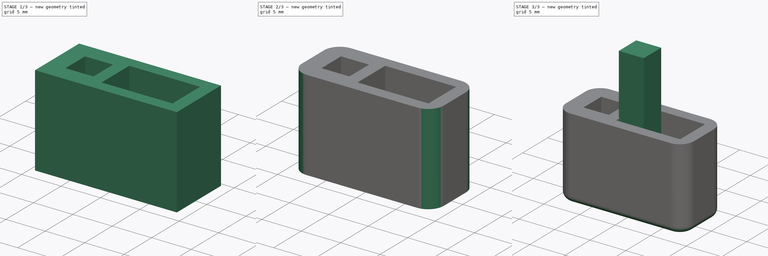
[diagram: build sequence overview — one tinted view per stage of 3, left to right]
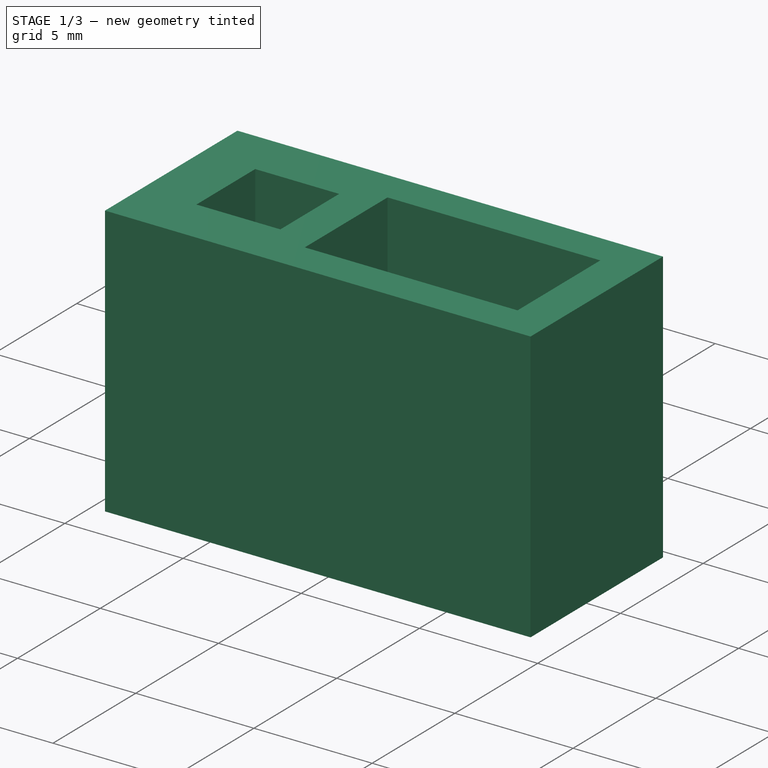
[diagram: stage 1 of 3 — iso view after this stage's code; geometry added in this stage tinted green]
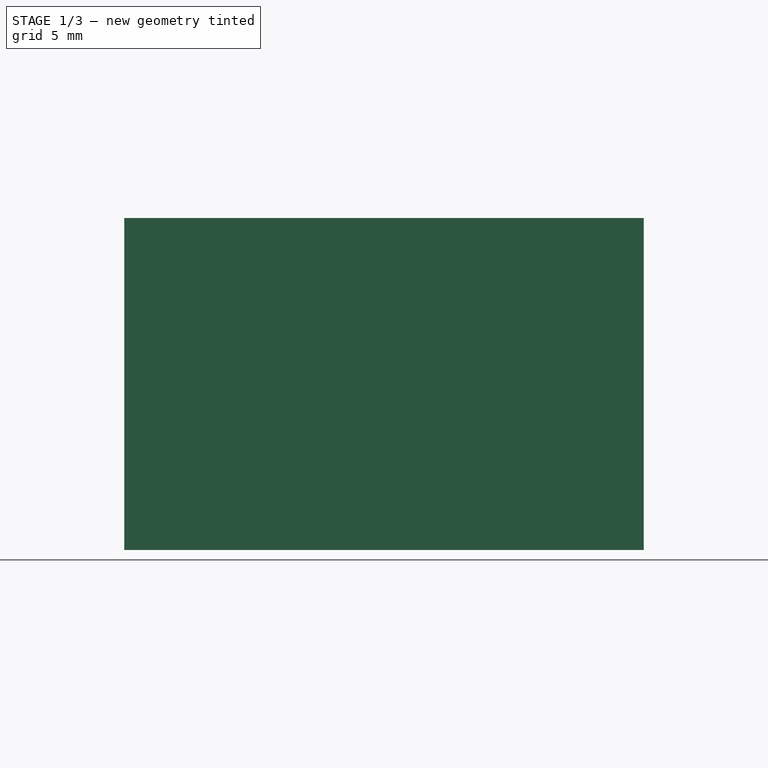
[diagram: stage 1 of 3 — front view after this stage's code; geometry added in this stage tinted green]
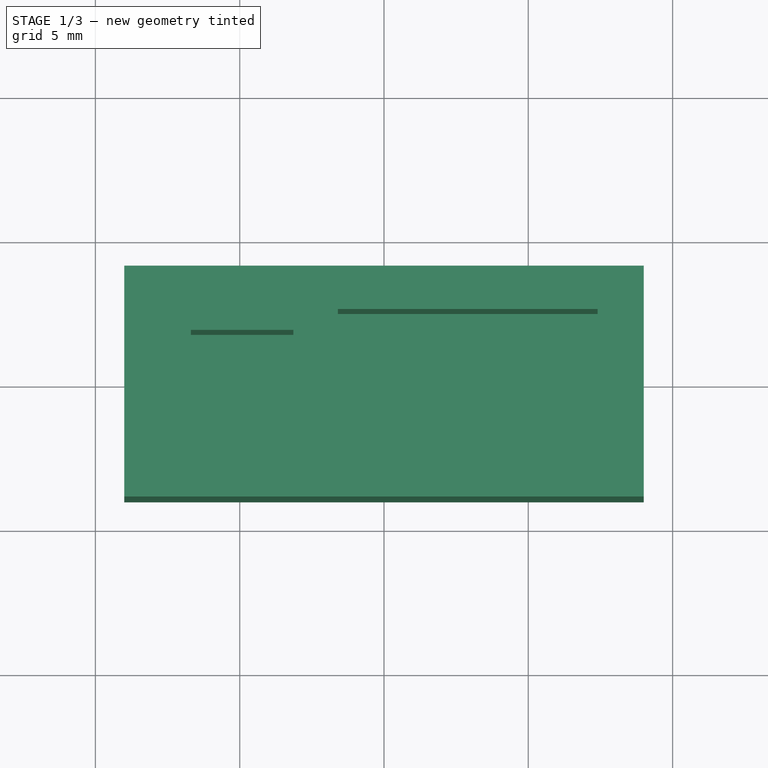
[diagram: stage 1 of 3 — top view after this stage's code; geometry added in this stage tinted green]
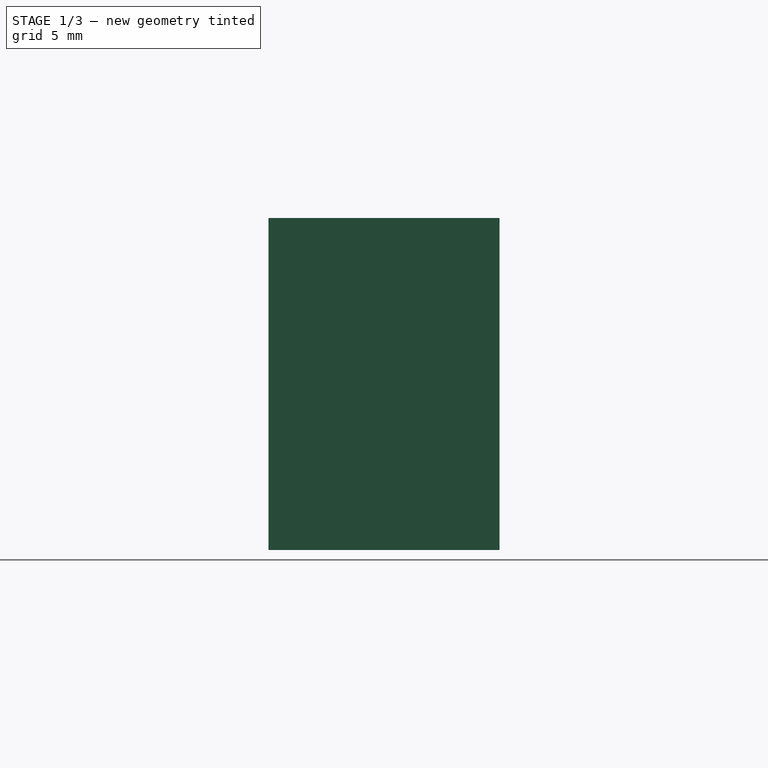
[diagram: stage 1 of 3 — right view after this stage's code; geometry added in this stage tinted green]
FCSTD DOCUMENT  (FreeCAD 1.1R42149 (Git))
Label: penshurst-stove-hood-button
License: All rights reserved
LicenseURL: https://en.wikipedia.org/wiki/All_rights_reserved
objects: Sketcher::SketchObject×3, App::Point×2, PartDesign::Pad×2, PartDesign::Fillet×2, PartDesign::Body×2, PartDesign::Pocket×1
note: 23 computed .brp shape members not serialized (recipe doc carries the construction recipe); baked Part::Feature solids carry a one-line shape summary decoded from their .brp

FEATURE [App::Point] Origin001
  Role = Origin
FEATURE [Sketcher::SketchObject] Sketch
  ArcFitTolerance = 1e-06
  AttachmentSupport = -> [Origin]
  ExternalTypes = [0]
  FullyConstrained = true
  MakeInternals = false
  MapMode = 5
  sketch-geometry (4):
    g0: LineSegment StartX=-9 StartY=4 StartZ=0 EndX=-9 EndY=-4 EndZ=0
    g1: LineSegment StartX=-9 StartY=-4 StartZ=0 EndX=9 EndY=-4 EndZ=0
    g2: LineSegment StartX=9 StartY=-4 StartZ=0 EndX=9 EndY=4 EndZ=0
    g3: LineSegment StartX=9 StartY=4 StartZ=0 EndX=-9 EndY=4 EndZ=0
  constraints (11):
    c: Coincident(g0,g1)
    c: Coincident(g1,g2)
    c: Coincident(g2,g3)
    c: Coincident(g3,g0)
    c: Vertical(g0)
    c: Vertical(g2)
    c: Horizontal(g1)
    c: Horizontal(g3)
    c: DistanceX(g3,g3) = 18
    c: DistanceY(g0,g0) = 8  'Width'
    c: Symmetric(g0,g1,g-1)
FEATURE [PartDesign::Pad] Pad
  Direction = (0,0,1)
  Length = 11.5
  Length2 = 10
  Profile = -> Sketch
  ReferenceAxis = -> Sketch [N_Axis]
  Refine = true
  Suppressed = false
  Type = 0
FEATURE [Sketcher::SketchObject] Sketch001
  ArcFitTolerance = 1e-06
  AttachmentSupport = -> [Pad]
  ExternalGeometry = -> [Pad]
  ExternalTypes = [0,0]
  FullyConstrained = true
  MakeInternals = false
  MapMode = 5
  Placement = pos=(0,0,11.5) rot=(0,0,1;0rad)
  sketch-geometry (8):
    g0: LineSegment StartX=7.4 StartY=2.5 StartZ=0 EndX=-1.6 EndY=2.5 EndZ=0
    g1: LineSegment StartX=-1.6 StartY=2.5 StartZ=0 EndX=-1.6 EndY=-2.5 EndZ=0
    g2: LineSegment StartX=-1.6 StartY=-2.5 StartZ=0 EndX=7.4 EndY=-2.5 EndZ=0
    g3: LineSegment StartX=7.4 StartY=-2.5 StartZ=0 EndX=7.4 EndY=2.5 EndZ=0
    g4: LineSegment StartX=-6.69 StartY=1.775 StartZ=0 EndX=-6.69 EndY=-1.775 EndZ=0
    g5: LineSegment StartX=-6.69 StartY=-1.775 StartZ=0 EndX=-3.14 EndY=-1.775 EndZ=0
    g6: LineSegment StartX=-3.14 StartY=-1.775 StartZ=0 EndX=-3.14 EndY=1.775 EndZ=0
    g7: LineSegment StartX=-3.14 StartY=1.775 StartZ=0 EndX=-6.69 EndY=1.775 EndZ=0
  constraints (22):
    c: Coincident(g0,g1)
    c: Coincident(g1,g2)
    c: Coincident(g2,g3)
    c: Coincident(g3,g0)
    c: Horizontal(g0)
    c: Horizontal(g2)
    c: Vertical(g1)
    c: Coincident(g4,g5)
    c: Coincident(g5,g6)
    c: Coincident(g6,g7)
    c: Coincident(g7,g4)
    c: Vertical(g4)
    c: Horizontal(g5)
    c: Horizontal(g7)
    c: Equal(g5,g4)
    c: DistanceY(g3,g3) = 5
    c: Symmetric(g0,g2,g-1)
    c: Symmetric(g6,g5,g-1)
    c: Distance(g4,g4) = 3.55
    c: Distance(g5,g-2) = 3.14
    c: DistanceX(g6,g0) = 1.54
    c: DistanceX(g0,g0) = 9
FEATURE [PartDesign::Pocket] Pocket
  BaseFeature = -> Pad
  Direction = (0,0,-1)
  Length = 9.9
  Length2 = 5
  Profile = -> Sketch001
  ReferenceAxis = -> Sketch001 [N_Axis]
  Refine = true
  Suppressed = false
  Type = 0
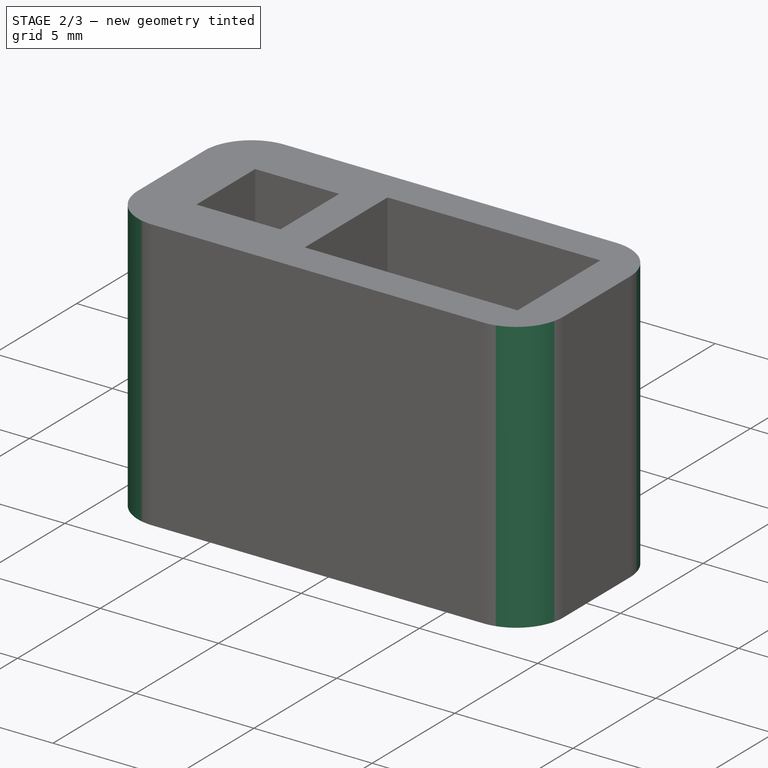
[diagram: stage 2 of 3 — iso view after this stage's code; geometry added in this stage tinted green]
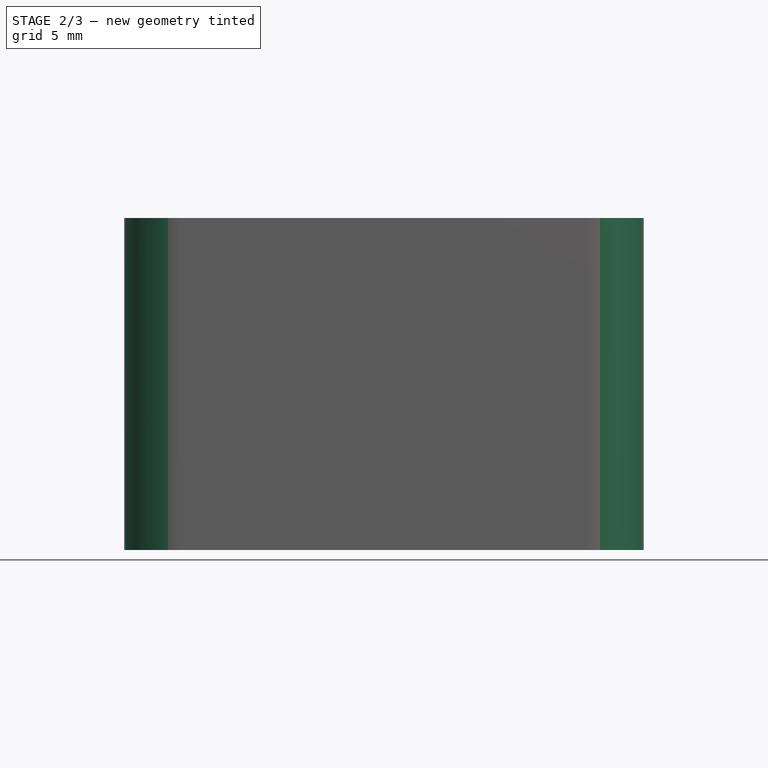
[diagram: stage 2 of 3 — front view after this stage's code; geometry added in this stage tinted green]
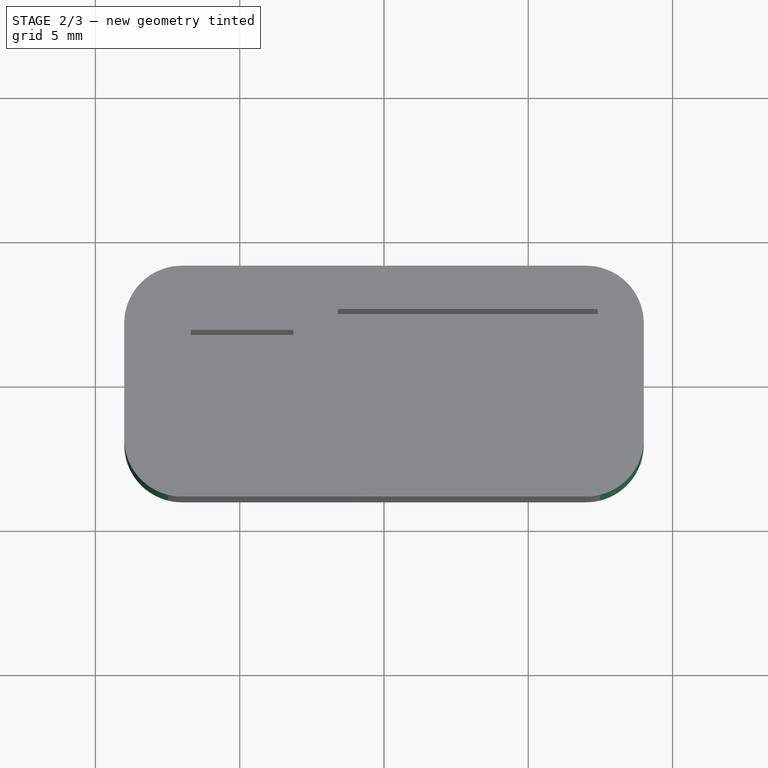
[diagram: stage 2 of 3 — top view after this stage's code; geometry added in this stage tinted green]
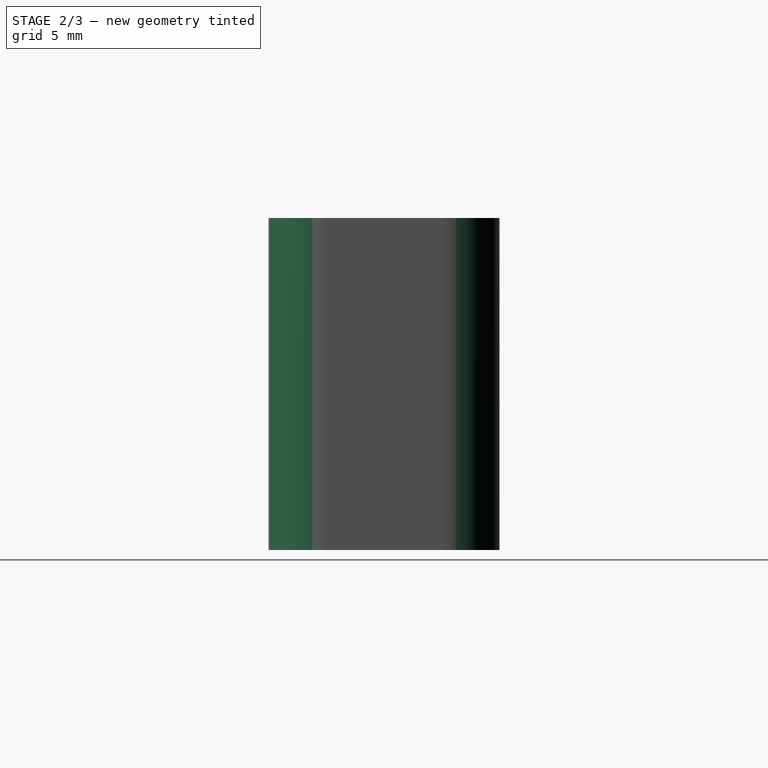
[diagram: stage 2 of 3 — right view after this stage's code; geometry added in this stage tinted green]
FEATURE [PartDesign::Fillet] Fillet
  Base = -> Pocket [Edge8,Edge5,Edge2,Edge1]
  BaseFeature = -> Pocket
  Radius = 2
  Refine = true
  SupportTransform = false
  Suppressed = false
  UseAllEdges = false
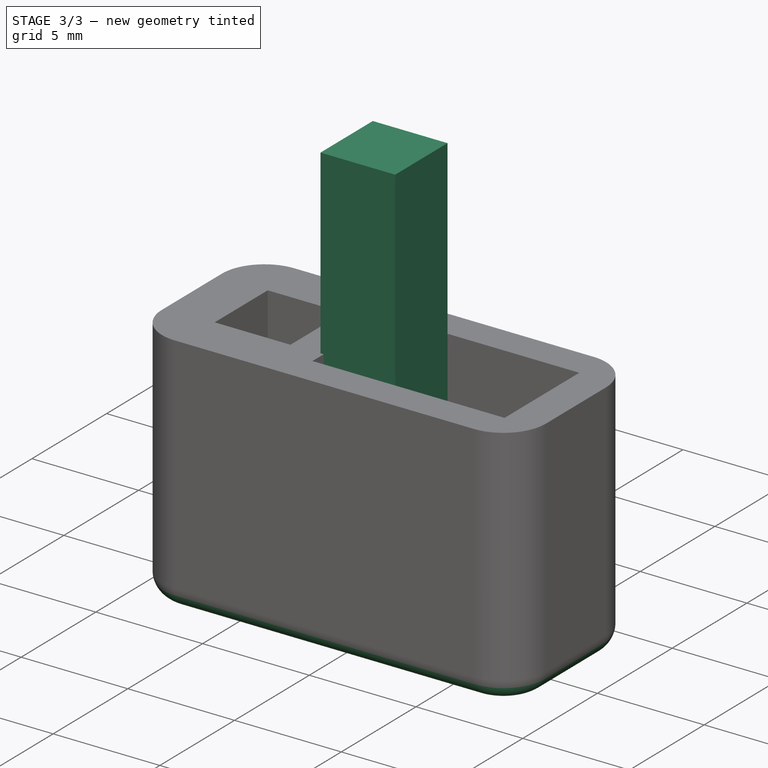
[diagram: stage 3 of 3 — iso view after this stage's code; geometry added in this stage tinted green]
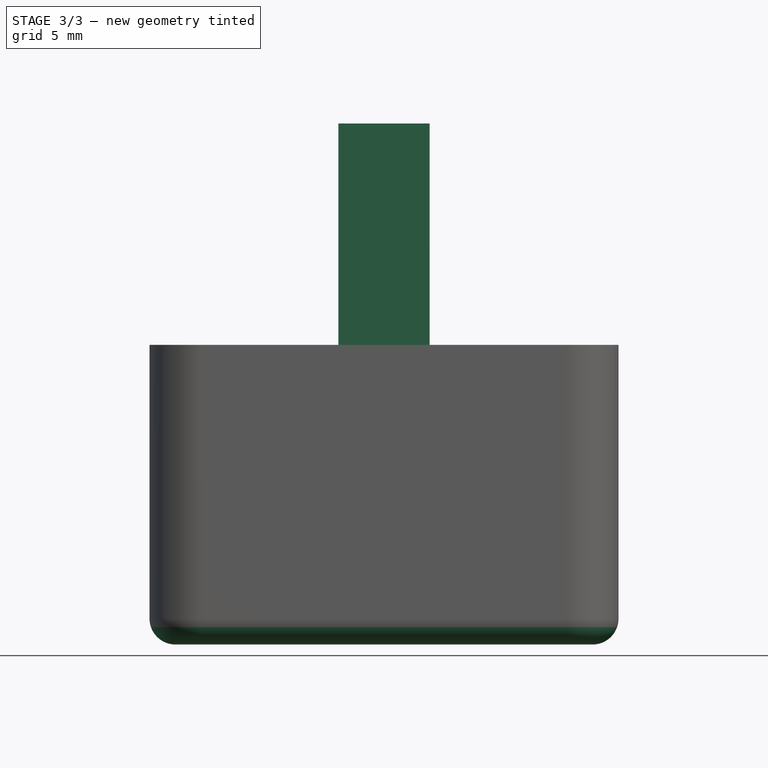
[diagram: stage 3 of 3 — front view after this stage's code; geometry added in this stage tinted green]
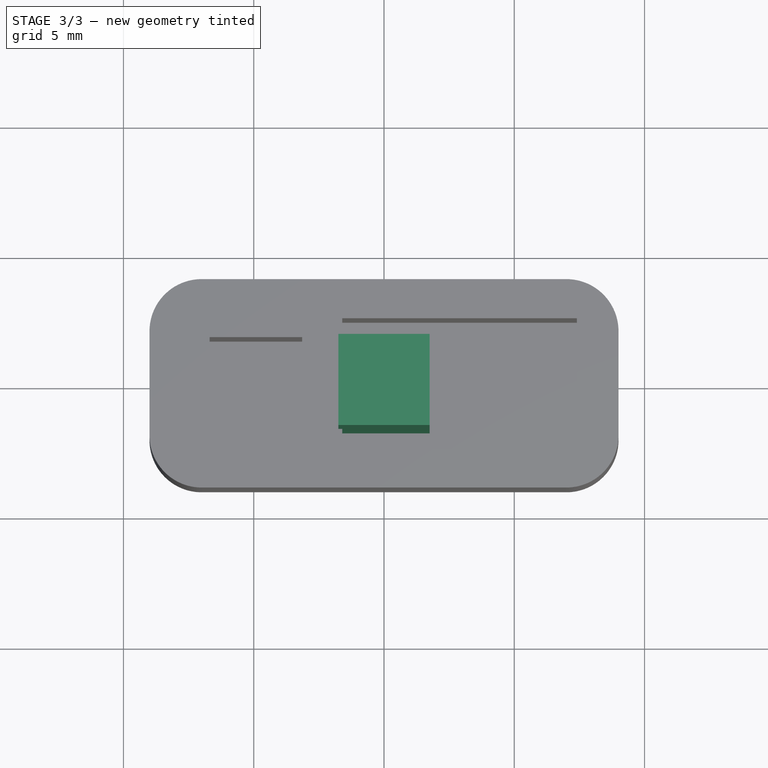
[diagram: stage 3 of 3 — top view after this stage's code; geometry added in this stage tinted green]
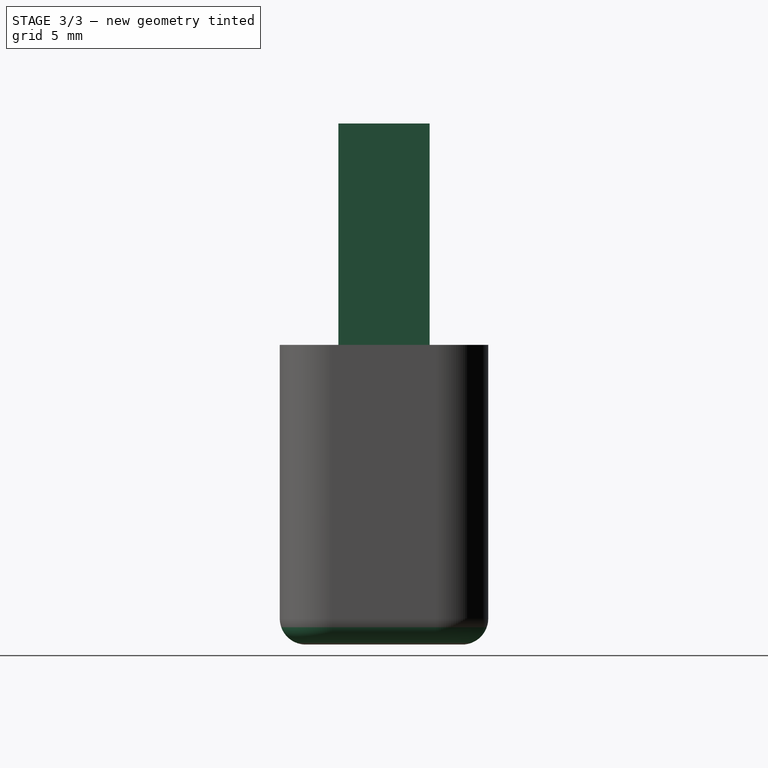
[diagram: stage 3 of 3 — right view after this stage's code; geometry added in this stage tinted green]
FEATURE [App::Point] Origin003
  Role = Origin
FEATURE [Sketcher::SketchObject] Sketch002
  ArcFitTolerance = 1e-06
  AttachmentSupport = -> [Origin002]
  ExternalTypes = [0]
  FullyConstrained = true
  MakeInternals = false
  MapMode = 5
  sketch-geometry (4):
    g0: LineSegment StartX=-1.75 StartY=1.75 StartZ=0 EndX=-1.75 EndY=-1.75 EndZ=0
    g1: LineSegment StartX=-1.75 StartY=-1.75 StartZ=0 EndX=1.75 EndY=-1.75 EndZ=0
    g2: LineSegment StartX=1.75 StartY=-1.75 StartZ=0 EndX=1.75 EndY=1.75 EndZ=0
    g3: LineSegment StartX=1.75 StartY=1.75 StartZ=0 EndX=-1.75 EndY=1.75 EndZ=0
  constraints (11):
    c: Coincident(g0,g1)
    c: Coincident(g1,g2)
    c: Coincident(g2,g3)
    c: Coincident(g3,g0)
    c: Vertical(g0)
    c: Vertical(g2)
    c: Horizontal(g1)
    c: Horizontal(g3)
    c: Distance(g1,g1) = 3.5
    c: Distance(g2,g2) = 3.5
    c: Symmetric(g0,g2,g-1)
FEATURE [PartDesign::Pad] Pad001
  Direction = (0,0,1)
  Length = 20
  Length2 = 10
  Profile = -> Sketch002
  ReferenceAxis = -> Sketch002 [N_Axis]
  Refine = true
  Suppressed = false
  Type = 0
FEATURE [PartDesign::Body] Body001
  AllowCompound = false
  Group = -> [Sketch002,Pad001]
  Origin = -> Origin002
  Tip = -> Pad001
FEATURE [PartDesign::Fillet] Fillet001
  Base = -> Fillet [Edge8,Edge7,Edge11,Edge1]
  BaseFeature = -> Fillet
  Radius = 1
  Refine = true
  SupportTransform = false
  Suppressed = false
  UseAllEdges = false
FEATURE [PartDesign::Body] Body
  AllowCompound = false
  Group = -> [Sketch,Pad,Sketch001,Pocket,Fillet,Fillet001]
  Origin = -> Origin
  Tip = -> Fillet001
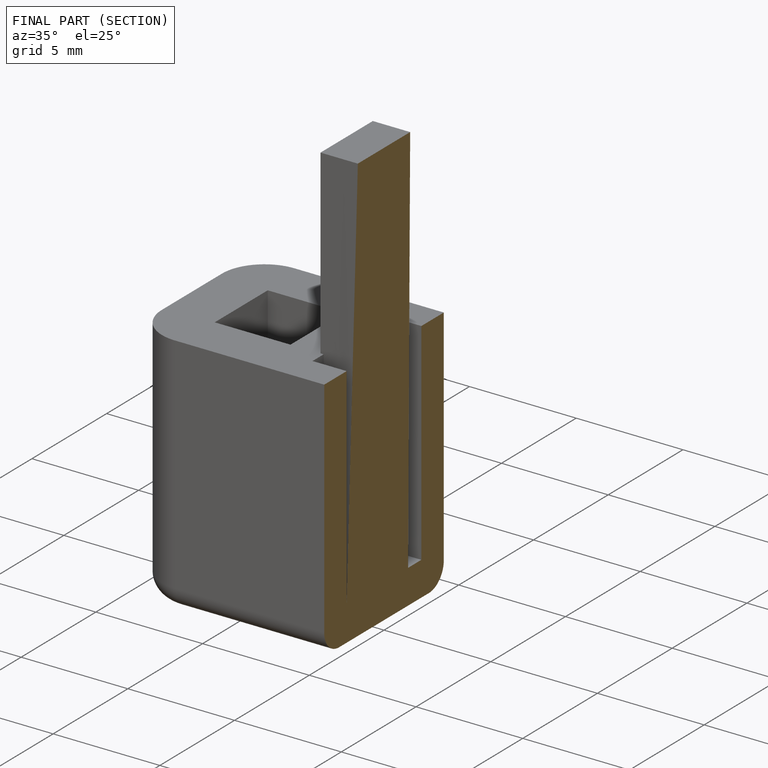
[diagram: finished part — half-section view (interior)]
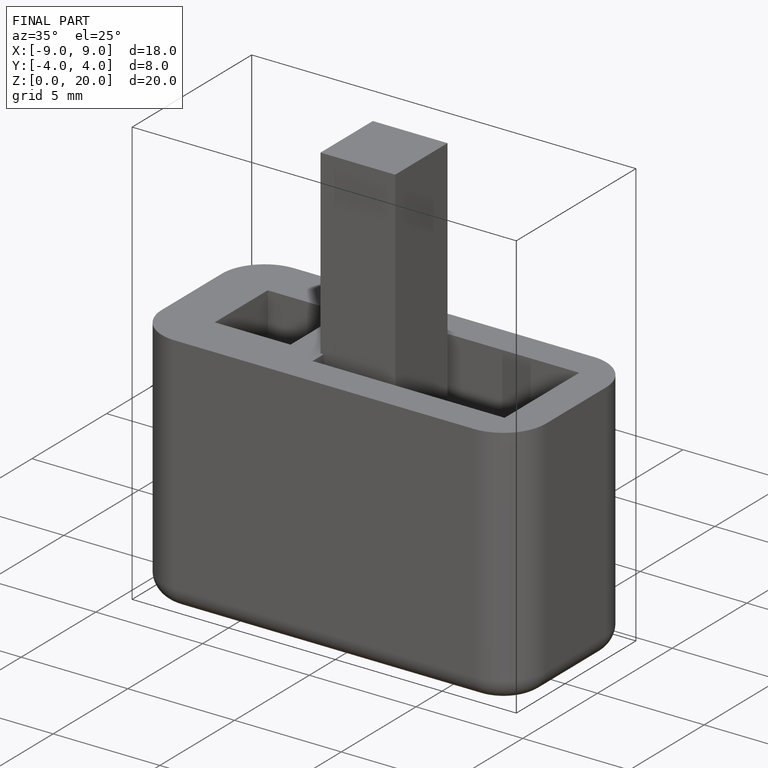
[diagram: finished part — iso view with bounding-box wireframe]
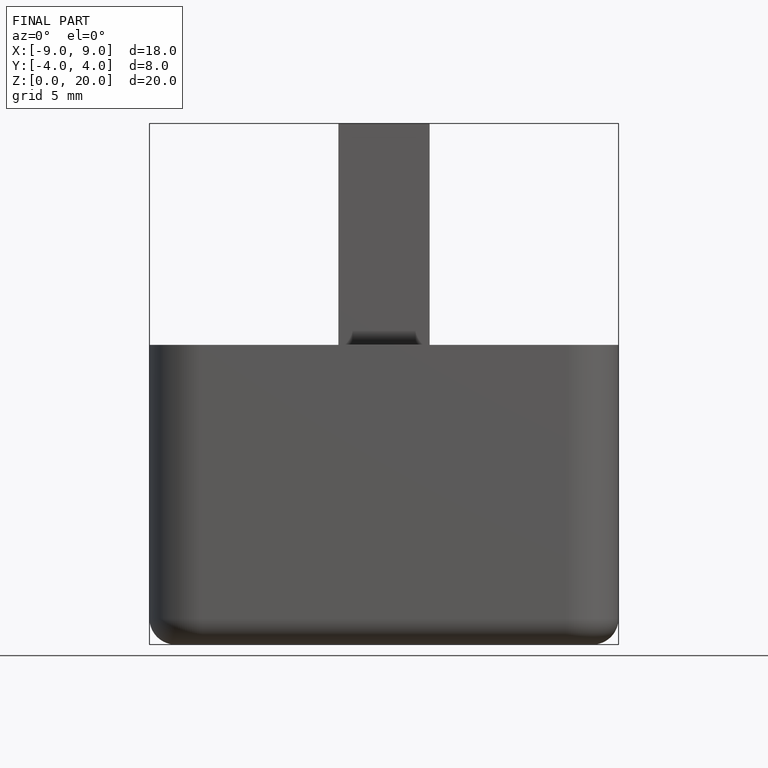
[diagram: finished part — front view with bounding-box wireframe]
